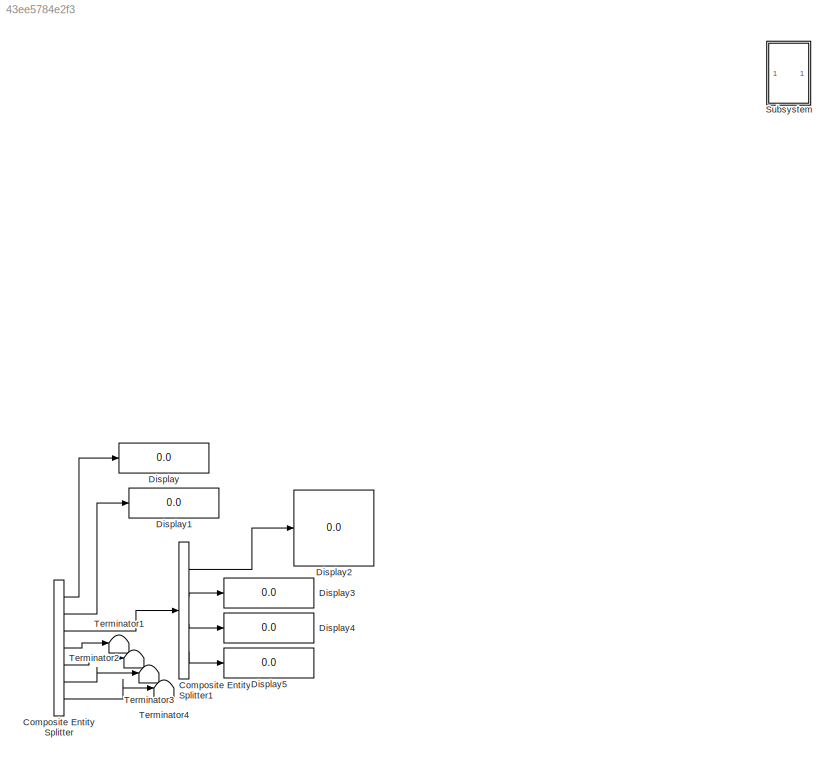
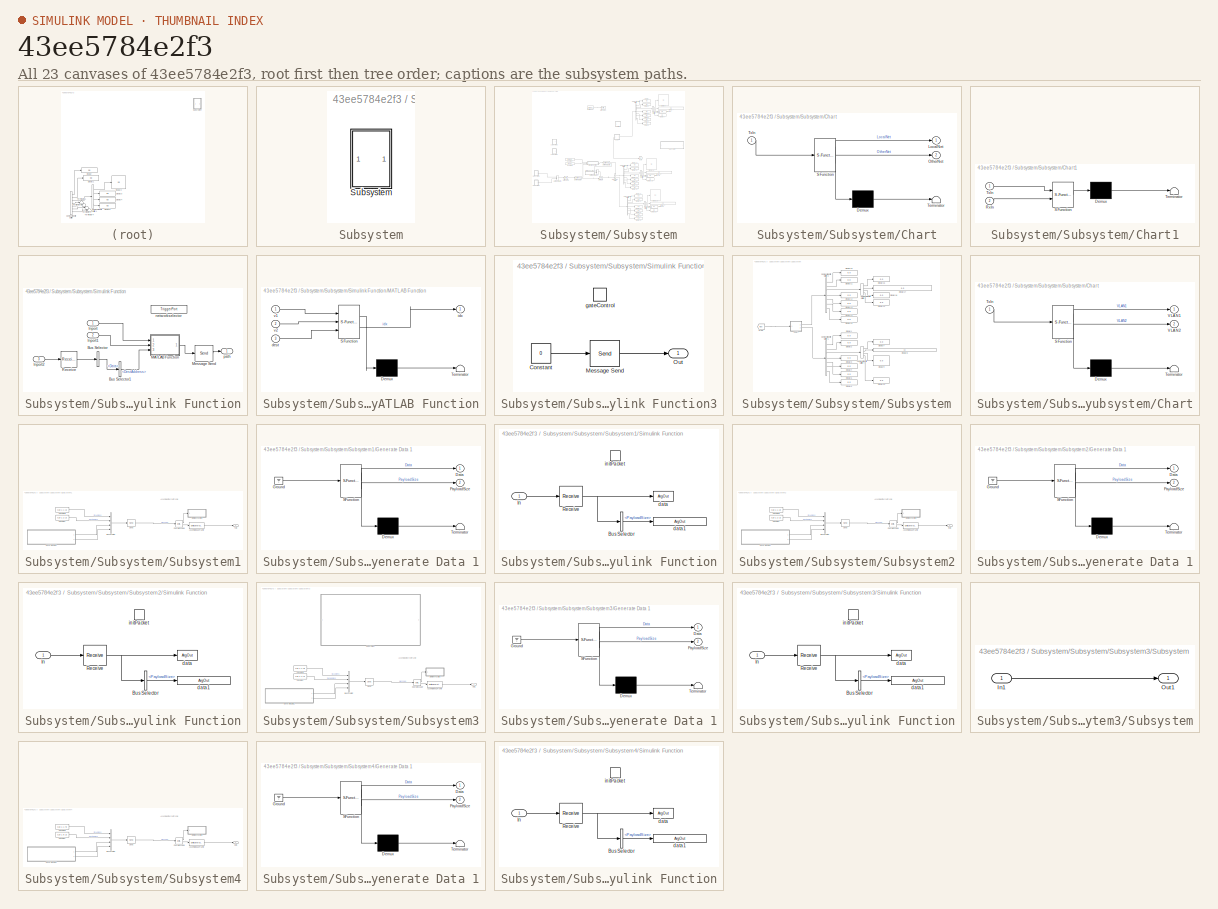
[diagram: thumbnail index - all 23 canvases of the model, root first then tree order]
MODEL slx_43ee5784e2f3
KIND model
CONFIG AbsTol = auto
CONFIG EnableMultiTasking = off
CONFIG FixedStep = auto
CONFIG MaxStep = auto
CONFIG MinStep = auto
CONFIG RelTol = 1e-3
CONFIG SampleTimeConstraint = Unconstrained
CONFIG SolverName = VariableStepAuto
CONFIG StartTime = 0.0
CONFIG StopTime = 30
BLOCK [CompositeEntitySplitter] Composite Entity Splitter
  Commented = on
  InputPortMap = u0
  InputPortMessageModes = m
  NumberOutputPorts = 7
  OutputPortMap = o0,o1,o2,o3,o4,o5,o6
  OutputPortMessageModes = m,m,m,m,m,m,m
  Ports = [1, 7]
BLOCK [CompositeEntitySplitter] Composite Entity Splitter1
  Commented = on
  InputPortMap = u0
  InputPortMessageModes = m
  NumberOutputPorts = 4
  OutputPortMap = o0,o1,o2,o3
  OutputPortMessageModes = m,m,m,m
  Ports = [1, 4]
BLOCK [Display] Display
  Commented = on
  Decimation = 1
  Ports = [1]
BLOCK [Display] Display1
  Commented = on
  Decimation = 1
  Ports = [1]
BLOCK [Display] Display2
  Commented = on
  Decimation = 1
  Ports = [1]
BLOCK [Display] Display3
  Commented = on
  Decimation = 1
  Ports = [1]
BLOCK [Display] Display4
  Commented = on
  Decimation = 1
  Ports = [1]
BLOCK [Display] Display5
  Commented = on
  Decimation = 1
  Ports = [1]
BLOCK [SubSystem] Subsystem
  Ports = []
  RequestExecContextInheritance = off
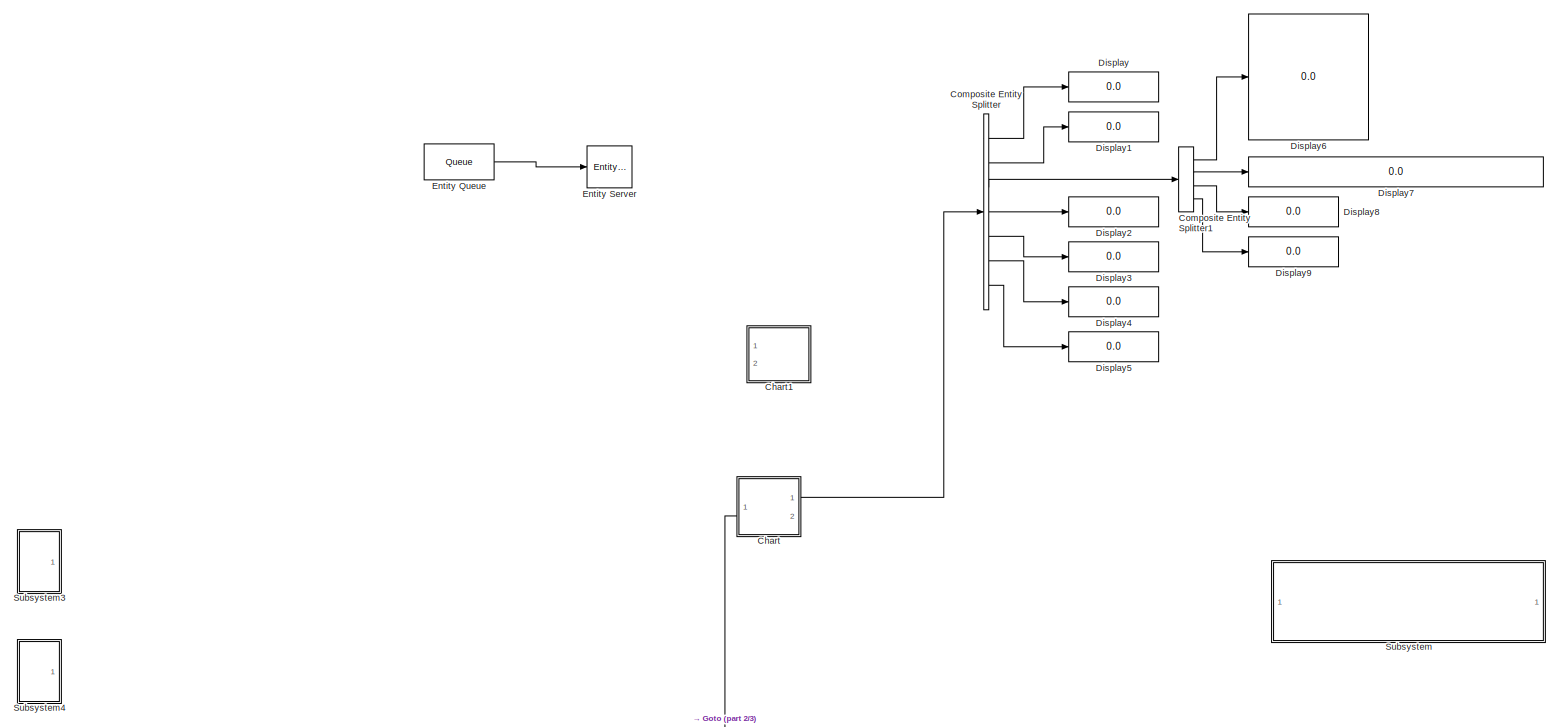
[diagram: Subsystem/Subsystem - part 1/3, full width, top band]
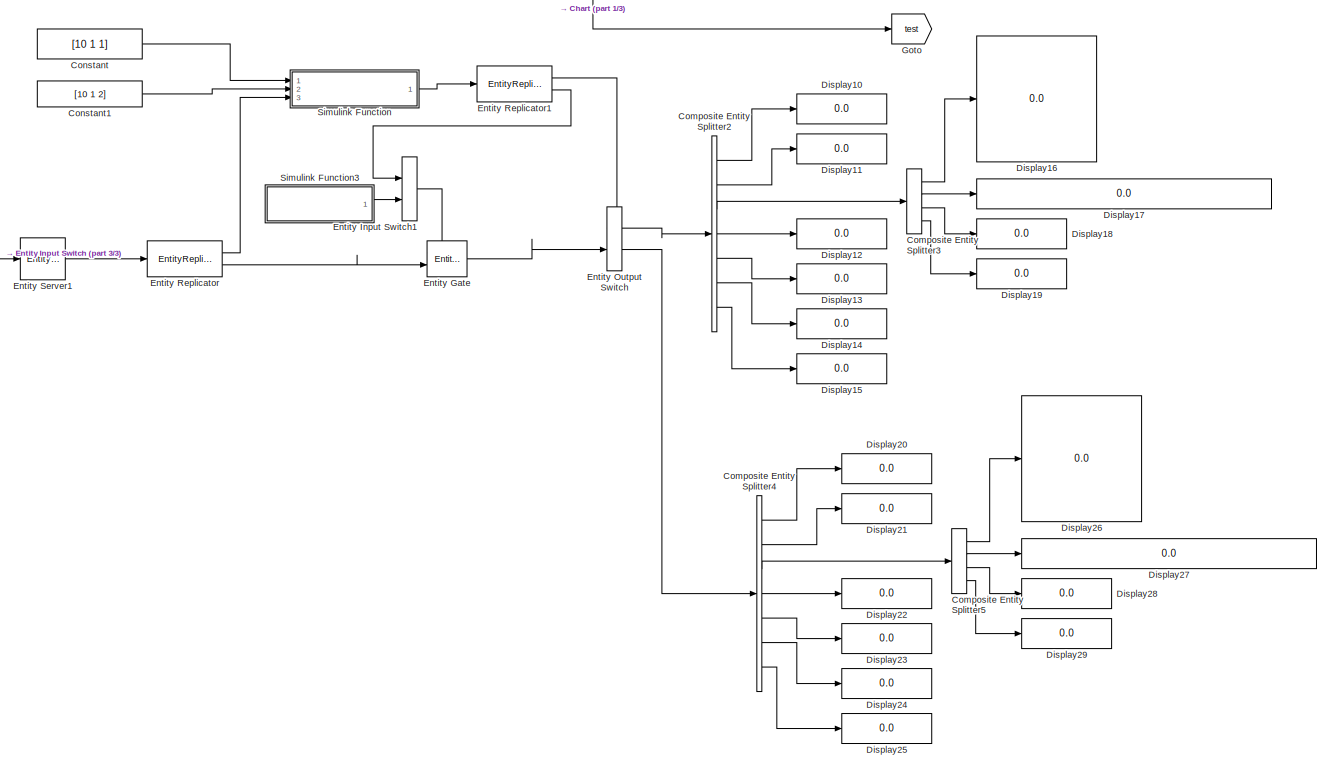
[diagram: Subsystem/Subsystem - part 2/3, full width, bottom band]
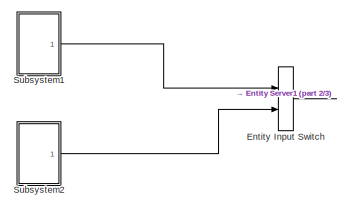
[diagram: Subsystem/Subsystem - part 3/3, middle left region]
BLOCK [SubSystem] Subsystem/Subsystem
  Ports = []
  RequestExecContextInheritance = off
BLOCK [SubSystem] Subsystem/Subsystem/Chart
  Commented = on
  ErrorFcn = Stateflow.Translate.translate
  PermitHierarchicalResolution = ExplicitOnly
  Ports = [1, 2]
  RequestExecContextInheritance = off
  SFBlockType = Chart
  TreatAsAtomicUnit = on
BLOCK [Demux] Subsystem/Subsystem/Chart/ Demux 
  Outputs = 1
  Ports = [1, 1]
BLOCK [S-Function] Subsystem/Subsystem/Chart/ SFunction 
  EnableBusSupport = on
  FunctionName = sf_sfun
  InputPortMessageModes = m
  OutputPortMessageModes = n,m,m
  Parameters = ip
  PortCounts = [1 3]
  Ports = [1, 3]
  SFcnIsStateOwnerBlock = off
  SFunctionDeploymentMode = off
  Tag = Stateflow S-Function 3
BLOCK [Terminator] Subsystem/Subsystem/Chart/ Terminator 
BLOCK [Outport] Subsystem/Subsystem/Chart/LocalNet
BLOCK [Outport] Subsystem/Subsystem/Chart/OtherNet
  Port = 2
BLOCK [Inport] Subsystem/Subsystem/Chart/TxIn
BLOCK [SubSystem] Subsystem/Subsystem/Chart1
  Commented = on
  ErrorFcn = Stateflow.Translate.translate
  PermitHierarchicalResolution = ExplicitOnly
  Ports = [2]
  RequestExecContextInheritance = off
  SFBlockType = Chart
  TreatAsAtomicUnit = on
BLOCK [Demux] Subsystem/Subsystem/Chart1/ Demux 
  Outputs = 1
  Ports = [1, 1]
BLOCK [S-Function] Subsystem/Subsystem/Chart1/ SFunction 
  EnableBusSupport = on
  FunctionName = sf_sfun
  InputPortMessageModes = m,m
  PortCounts = [2 1]
  Ports = [2, 1]
  SFcnIsStateOwnerBlock = off
  SFunctionDeploymentMode = off
  Tag = Stateflow S-Function 7
BLOCK [Terminator] Subsystem/Subsystem/Chart1/ Terminator 
BLOCK [Inport] Subsystem/Subsystem/Chart1/RxIn
  Port = 2
BLOCK [Inport] Subsystem/Subsystem/Chart1/TxIn
BLOCK [CompositeEntitySplitter] Subsystem/Subsystem/Composite Entity Splitter
  Commented = on
  InputPortMap = u0
  InputPortMessageModes = m
  NumberOutputPorts = 7
  OutputPortMap = o0,o1,o2,o3,o4,o5,o6
  OutputPortMessageModes = m,m,m,m,m,m,m
  Ports = [1, 7]
BLOCK [CompositeEntitySplitter] Subsystem/Subsystem/Composite Entity Splitter1
  Commented = on
  InputPortMap = u0
  InputPortMessageModes = m
  NumberOutputPorts = 4
  OutputPortMap = o0,o1,o2,o3
  OutputPortMessageModes = m,m,m,m
  Ports = [1, 4]
BLOCK [CompositeEntitySplitter] Subsystem/Subsystem/Composite Entity Splitter2
  InputPortMap = u0
  InputPortMessageModes = m
  NumberOutputPorts = 7
  OutputPortMap = o0,o1,o2,o3,o4,o5,o6
  OutputPortMessageModes = m,m,m,m,m,m,m
  Ports = [1, 7]
BLOCK [CompositeEntitySplitter] Subsystem/Subsystem/Composite Entity Splitter3
  InputPortMap = u0
  InputPortMessageModes = m
  NumberOutputPorts = 4
  OutputPortMap = o0,o1,o2,o3
  OutputPortMessageModes = m,m,m,m
  Ports = [1, 4]
BLOCK [CompositeEntitySplitter] Subsystem/Subsystem/Composite Entity Splitter4
  InputPortMap = u0
  InputPortMessageModes = m
  NumberOutputPorts = 7
  OutputPortMap = o0,o1,o2,o3,o4,o5,o6
  OutputPortMessageModes = m,m,m,m,m,m,m
  Ports = [1, 7]
BLOCK [CompositeEntitySplitter] Subsystem/Subsystem/Composite Entity Splitter5
  InputPortMap = u0
  InputPortMessageModes = m
  NumberOutputPorts = 4
  OutputPortMap = o0,o1,o2,o3
  OutputPortMessageModes = m,m,m,m
  Ports = [1, 4]
BLOCK [Constant] Subsystem/Subsystem/Constant
  Value = [10 1 1]
BLOCK [Constant] Subsystem/Subsystem/Constant1
  Value = [10 1 2]
BLOCK [Display] Subsystem/Subsystem/Display
  Commented = on
  Decimation = 1
  Ports = [1]
BLOCK [Display] Subsystem/Subsystem/Display1
  Commented = on
  Decimation = 1
  Ports = [1]
BLOCK [Display] Subsystem/Subsystem/Display10
  Decimation = 1
  Ports = [1]
BLOCK [Display] Subsystem/Subsystem/Display11
  Decimation = 1
  Ports = [1]
BLOCK [Display] Subsystem/Subsystem/Display12
  Decimation = 1
  Ports = [1]
BLOCK [Display] Subsystem/Subsystem/Display13
  Decimation = 1
  Ports = [1]
BLOCK [Display] Subsystem/Subsystem/Display14
  Decimation = 1
  Ports = [1]
BLOCK [Display] Subsystem/Subsystem/Display15
  Decimation = 1
  Ports = [1]
BLOCK [Display] Subsystem/Subsystem/Display16
  Decimation = 1
  Ports = [1]
BLOCK [Display] Subsystem/Subsystem/Display17
  Decimation = 1
  Ports = [1]
BLOCK [Display] Subsystem/Subsystem/Display18
  Decimation = 1
  Ports = [1]
BLOCK [Display] Subsystem/Subsystem/Display19
  Decimation = 1
  Ports = [1]
BLOCK [Display] Subsystem/Subsystem/Display2
  Commented = on
  Decimation = 1
  Ports = [1]
BLOCK [Display] Subsystem/Subsystem/Display20
  Decimation = 1
  Ports = [1]
BLOCK [Display] Subsystem/Subsystem/Display21
  Decimation = 1
  Ports = [1]
BLOCK [Display] Subsystem/Subsystem/Display22
  Decimation = 1
  Ports = [1]
BLOCK [Display] Subsystem/Subsystem/Display23
  Decimation = 1
  Ports = [1]
BLOCK [Display] Subsystem/Subsystem/Display24
  Decimation = 1
  Ports = [1]
BLOCK [Display] Subsystem/Subsystem/Display25
  Decimation = 1
  Ports = [1]
BLOCK [Display] Subsystem/Subsystem/Display26
  Decimation = 1
  Ports = [1]
BLOCK [Display] Subsystem/Subsystem/Display27
  Decimation = 1
  Ports = [1]
BLOCK [Display] Subsystem/Subsystem/Display28
  Decimation = 1
  Ports = [1]
BLOCK [Display] Subsystem/Subsystem/Display29
  Decimation = 1
  Ports = [1]
BLOCK [Display] Subsystem/Subsystem/Display3
  Commented = on
  Decimation = 1
  Ports = [1]
BLOCK [Display] Subsystem/Subsystem/Display4
  Commented = on
  Decimation = 1
  Ports = [1]
BLOCK [Display] Subsystem/Subsystem/Display5
  Commented = on
  Decimation = 1
  Ports = [1]
BLOCK [Display] Subsystem/Subsystem/Display6
  Commented = on
  Decimation = 1
  Ports = [1]
BLOCK [Display] Subsystem/Subsystem/Display7
  Commented = on
  Decimation = 1
  Ports = [1]
BLOCK [Display] Subsystem/Subsystem/Display8
  Commented = on
  Decimation = 1
  Ports = [1]
BLOCK [Display] Subsystem/Subsystem/Display9
  Commented = on
  Decimation = 1
  Ports = [1]
BLOCK [EntityGate] Subsystem/Subsystem/Entity Gate
  InputPortMap = u0,u1
  InputPortMessageModes = m,m
  OpenGateAtSimulationStart = on
  OutputPortMap = o0
  OutputPortMessageModes = m
  Ports = [2, 1]
BLOCK [EntityInputSwitch] Subsystem/Subsystem/Entity Input Switch
  InputPortMap = u1,u2
  InputPortMessageModes = m,m
  OutputPortMap = o0
  OutputPortMessageModes = m
  Ports = [2, 1]
BLOCK [EntityInputSwitch] Subsystem/Subsystem/Entity Input Switch1
  InputPortMap = u1,u2
  InputPortMessageModes = m,m
  OutputPortMap = o0
  OutputPortMessageModes = m
  Ports = [2, 1]
BLOCK [EntityOutputSwitch] Subsystem/Subsystem/Entity Output Switch
  InputPortMap = u0,u1
  InputPortMessageModes = m,m
  OutputPortMap = o0,o1
  OutputPortMessageModes = m,m
  Ports = [2, 2]
  SwitchAttributeName = Attribute1
  SwitchingCriterion = From control port
BLOCK [Queue] Subsystem/Subsystem/Entity Queue
  Capacity = 255
  Commented = on
  InputPortMap = u0
  InputPortMessageModes = m
  OutputPortMap = o5
  OutputPortMessageModes = m
  Ports = [1, 1]
BLOCK [EntityReplicator] Subsystem/Subsystem/Entity Replicator
  InputPortMap = u0
  InputPortMessageModes = m
  OutputPortMap = o0,o1
  OutputPortMessageModes = m,m
  Ports = [1, 2]
BLOCK [EntityReplicator] Subsystem/Subsystem/Entity Replicator1
  InputPortMap = u0
  InputPortMessageModes = m
  OutputPortMap = o0,o1
  OutputPortMessageModes = m,m
  Ports = [1, 2]
BLOCK [EntityServer] Subsystem/Subsystem/Entity Server
  Capacity = 255
  Commented = on
  InputPortMap = u2
  InputPortMessageModes = m
  OutputPortMap = o9
  OutputPortMessageModes = m
  Ports = [1, 1]
  ServiceTimeValue = 0.01
BLOCK [EntityServer] Subsystem/Subsystem/Entity Server1
  Capacity = inf
  ExitAction = gateControl();
  InputPortMap = u2
  InputPortMessageModes = m
  OutputPortMap = o9
  OutputPortMessageModes = m
  Ports = [1, 1]
  ServiceCompleteAction = networkselector();
  ServiceTimeSource = MATLAB action
BLOCK [Goto] Subsystem/Subsystem/Goto
  Commented = on
  GotoTag = test
  TagVisibility = global
BLOCK [SubSystem] Subsystem/Subsystem/Simulink Function
  Ports = [3, 1, 0, 1]
  RequestExecContextInheritance = off
  TreatAsAtomicUnit = on
BLOCK [BusSelector] Subsystem/Subsystem/Simulink Function/Bus Selector
  OutputSignals = Data
  Ports = [1, 1]
BLOCK [BusSelector] Subsystem/Subsystem/Simulink Function/Bus Selector1
  OutputSignals = DestAddress
  Ports = [1, 1]
BLOCK [Inport] Subsystem/Subsystem/Simulink Function/Inport
BLOCK [Inport] Subsystem/Subsystem/Simulink Function/Inport1
  Port = 2
BLOCK [Inport] Subsystem/Subsystem/Simulink Function/Inport2
  Port = 3
BLOCK [SubSystem] Subsystem/Subsystem/Simulink Function/MATLAB Function
  ErrorFcn = Stateflow.Translate.translate
  PermitHierarchicalResolution = ExplicitOnly
  Ports = [3, 1]
  RequestExecContextInheritance = off
  SFBlockType = MATLAB Function
  TreatAsAtomicUnit = on
BLOCK [Demux] Subsystem/Subsystem/Simulink Function/MATLAB Function/ Demux 
  Outputs = 1
  Ports = [1, 1]
BLOCK [S-Function] Subsystem/Subsystem/Simulink Function/MATLAB Function/ SFunction 
  EnableBusSupport = on
  FunctionName = sf_sfun
  PortCounts = [3 2]
  Ports = [3, 2]
  SFcnIsStateOwnerBlock = off
  SFunctionDeploymentMode = off
  Tag = Stateflow S-Function 8
BLOCK [Terminator] Subsystem/Subsystem/Simulink Function/MATLAB Function/ Terminator 
BLOCK [Inport] Subsystem/Subsystem/Simulink Function/MATLAB Function/dest
  Port = 3
BLOCK [Outport] Subsystem/Subsystem/Simulink Function/MATLAB Function/idx
BLOCK [Inport] Subsystem/Subsystem/Simulink Function/MATLAB Function/v1
BLOCK [Inport] Subsystem/Subsystem/Simulink Function/MATLAB Function/v2
  Port = 2
BLOCK [Send] Subsystem/Subsystem/Simulink Function/Message Send
  InputPortMap = u1
  OutputPortMessageModes = m
  Ports = [1, 1]
BLOCK [Receive] Subsystem/Subsystem/Simulink Function/Receive
  InputPortMap = u0
  InputPortMessageModes = m
  OutputPortMap = o1
  Ports = [1, 1]
  QueueLength = 1
  QueueOverwriting = on
  QueueType = LIFO
  UseInternalQueue = off
BLOCK [TriggerPort] Subsystem/Subsystem/Simulink Function/networkselector
  FunctionName = networkselector
  FunctionVisibility = scoped
  IsSimulinkFunction = on
  Ports = []
  StatesWhenEnabling = held
  TriggerType = function-call
  VariantControl = (inherit)
BLOCK [Outport] Subsystem/Subsystem/Simulink Function/path
BLOCK [SubSystem] Subsystem/Subsystem/Simulink Function3
  Ports = [0, 1, 0, 1]
  RequestExecContextInheritance = off
  TreatAsAtomicUnit = on
BLOCK [Constant] Subsystem/Subsystem/Simulink Function3/Constant
  Value = 0
BLOCK [Send] Subsystem/Subsystem/Simulink Function3/Message Send
  InputPortMap = u1
  OutputPortMessageModes = m
  Ports = [1, 1]
BLOCK [Outport] Subsystem/Subsystem/Simulink Function3/Out
BLOCK [TriggerPort] Subsystem/Subsystem/Simulink Function3/gateControl
  FunctionName = gateControl
  FunctionVisibility = scoped
  IsSimulinkFunction = on
  Ports = []
  StatesWhenEnabling = held
  TriggerType = function-call
  VariantControl = Variant
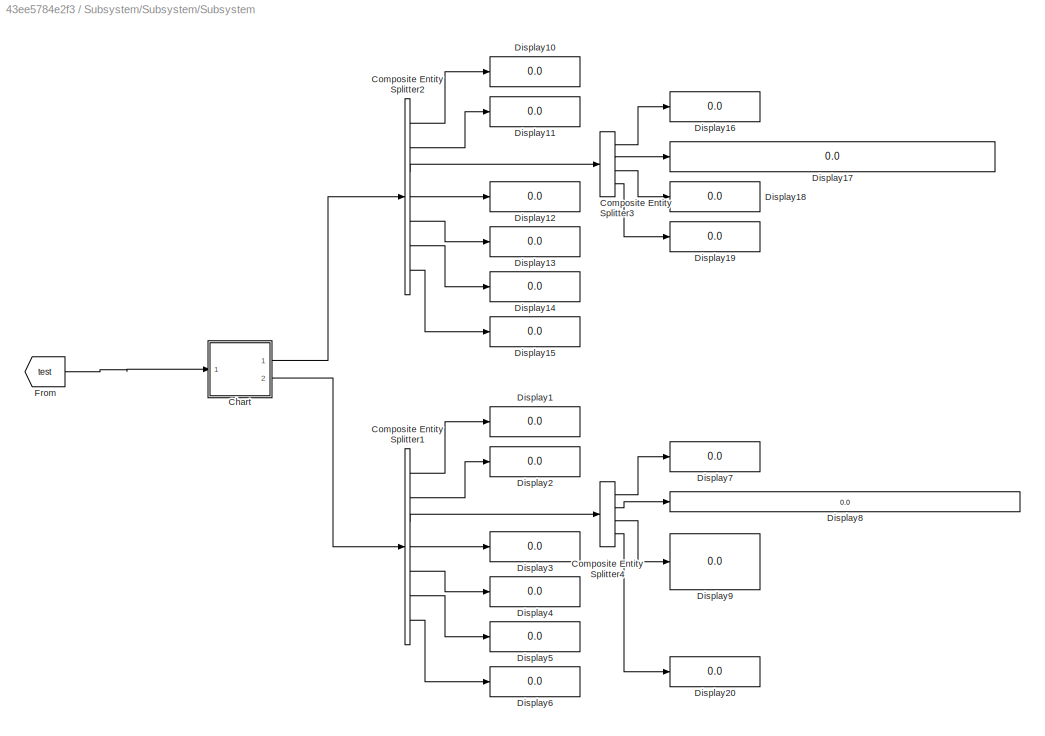
BLOCK [SubSystem] Subsystem/Subsystem/Subsystem
  Commented = on
  Ports = []
  RequestExecContextInheritance = off
BLOCK [SubSystem] Subsystem/Subsystem/Subsystem/Chart
  ErrorFcn = Stateflow.Translate.translate
  PermitHierarchicalResolution = ExplicitOnly
  Ports = [1, 2]
  RequestExecContextInheritance = off
  SFBlockType = Chart
  TreatAsAtomicUnit = on
BLOCK [Demux] Subsystem/Subsystem/Subsystem/Chart/ Demux 
  Outputs = 1
  Ports = [1, 1]
BLOCK [S-Function] Subsystem/Subsystem/Subsystem/Chart/ SFunction 
  EnableBusSupport = on
  FunctionName = sf_sfun
  InputPortMessageModes = m
  OutputPortMessageModes = n,m,m
  Parameters = vlan1,vlan2
  PortCounts = [1 3]
  Ports = [1, 3]
  SFcnIsStateOwnerBlock = off
  SFunctionDeploymentMode = off
  Tag = Stateflow S-Function 2
BLOCK [Terminator] Subsystem/Subsystem/Subsystem/Chart/ Terminator 
BLOCK [Inport] Subsystem/Subsystem/Subsystem/Chart/TxIn
BLOCK [Outport] Subsystem/Subsystem/Subsystem/Chart/VLAN1
BLOCK [Outport] Subsystem/Subsystem/Subsystem/Chart/VLAN2
  Port = 2
BLOCK [CompositeEntitySplitter] Subsystem/Subsystem/Subsystem/Composite Entity Splitter1
  InputPortMap = u0
  InputPortMessageModes = m
  NumberOutputPorts = 7
  OutputPortMap = o0,o1,o2,o3,o4,o5,o6
  OutputPortMessageModes = m,m,m,m,m,m,m
  Ports = [1, 7]
BLOCK [CompositeEntitySplitter] Subsystem/Subsystem/Subsystem/Composite Entity Splitter2
  InputPortMap = u0
  InputPortMessageModes = m
  NumberOutputPorts = 7
  OutputPortMap = o0,o1,o2,o3,o4,o5,o6
  OutputPortMessageModes = m,m,m,m,m,m,m
  Ports = [1, 7]
BLOCK [CompositeEntitySplitter] Subsystem/Subsystem/Subsystem/Composite Entity Splitter3
  InputPortMap = u0
  InputPortMessageModes = m
  NumberOutputPorts = 4
  OutputPortMap = o0,o1,o2,o3
  OutputPortMessageModes = m,m,m,m
  Ports = [1, 4]
BLOCK [CompositeEntitySplitter] Subsystem/Subsystem/Subsystem/Composite Entity Splitter4
  InputPortMap = u0
  InputPortMessageModes = m
  NumberOutputPorts = 4
  OutputPortMap = o0,o1,o2,o3
  OutputPortMessageModes = m,m,m,m
  Ports = [1, 4]
BLOCK [Display] Subsystem/Subsystem/Subsystem/Display1
  Decimation = 1
  Ports = [1]
BLOCK [Display] Subsystem/Subsystem/Subsystem/Display10
  Decimation = 1
  Ports = [1]
BLOCK [Display] Subsystem/Subsystem/Subsystem/Display11
  Decimation = 1
  Ports = [1]
BLOCK [Display] Subsystem/Subsystem/Subsystem/Display12
  Decimation = 1
  Ports = [1]
BLOCK [Display] Subsystem/Subsystem/Subsystem/Display13
  Decimation = 1
  Ports = [1]
BLOCK [Display] Subsystem/Subsystem/Subsystem/Display14
  Decimation = 1
  Ports = [1]
BLOCK [Display] Subsystem/Subsystem/Subsystem/Display15
  Decimation = 1
  Ports = [1]
BLOCK [Display] Subsystem/Subsystem/Subsystem/Display16
  Decimation = 1
  Ports = [1]
BLOCK [Display] Subsystem/Subsystem/Subsystem/Display17
  Decimation = 1
  Ports = [1]
BLOCK [Display] Subsystem/Subsystem/Subsystem/Display18
  Decimation = 1
  Ports = [1]
BLOCK [Display] Subsystem/Subsystem/Subsystem/Display19
  Decimation = 1
  Ports = [1]
BLOCK [Display] Subsystem/Subsystem/Subsystem/Display2
  Decimation = 1
  Ports = [1]
BLOCK [Display] Subsystem/Subsystem/Subsystem/Display20
  Decimation = 1
  Ports = [1]
BLOCK [Display] Subsystem/Subsystem/Subsystem/Display3
  Decimation = 1
  Ports = [1]
BLOCK [Display] Subsystem/Subsystem/Subsystem/Display4
  Decimation = 1
  Ports = [1]
BLOCK [Display] Subsystem/Subsystem/Subsystem/Display5
  Decimation = 1
  Ports = [1]
BLOCK [Display] Subsystem/Subsystem/Subsystem/Display6
  Decimation = 1
  Ports = [1]
BLOCK [Display] Subsystem/Subsystem/Subsystem/Display7
  Decimation = 1
  Ports = [1]
BLOCK [Display] Subsystem/Subsystem/Subsystem/Display8
  Decimation = 1
  Ports = [1]
BLOCK [Display] Subsystem/Subsystem/Subsystem/Display9
  Decimation = 1
  Ports = [1]
BLOCK [From] Subsystem/Subsystem/Subsystem/From
  GotoTag = test
  TagVisibility = global
BLOCK [SubSystem] Subsystem/Subsystem/Subsystem1
  Ports = [0, 1]
  RequestExecContextInheritance = off
BLOCK [EntityGenerator] Subsystem/Subsystem/Subsystem1/Assemble MAC Frame
  EntityType = Bus object
  EntityTypeName = ethernetPacket
  GenerateAction = entity.TxAddress = 1;\nentity.RxAddress = 0;\n[entity.Data, entity.PayloadSize] = initPacket();\nentity.TxDelay = (entity.PayloadSize+22)*8/BitRate;\nentity.BackoffTime = 0;\nentity.CRC = 0;  <repeated x4 — deduplicated; at blocks: Assemble MAC Frame>
  GenerationMethod = Event-based
  InputPortMap = u0
  InputPortMessageModes = m
  OutputPortMap = o3
  OutputPortMessageModes = m
  Ports = [1, 1]
BLOCK [BusCreator] Subsystem/Subsystem/Subsystem1/Bus Creator
  DisplayOption = bar
  InheritFromInputs = on
  Inputs = 4
  NonVirtualBus = on
  OutDataTypeStr = Bus: dataPacket
  Ports = [4, 1]
BLOCK [Constant] Subsystem/Subsystem/Subsystem1/Constant
  Value = [10 1 2 1]
BLOCK [Constant] Subsystem/Subsystem/Subsystem1/Constant1
  Value = [10 1 1 1]
BLOCK [EntityReplicator] Subsystem/Subsystem/Subsystem1/Copy Message
  InputPortMap = u0
  InputPortMessageModes = m
  OutputPortMap = o0,o1
  OutputPortMessageModes = m,m
  Ports = [1, 2]
BLOCK [SubSystem] Subsystem/Subsystem/Subsystem1/Generate Data 1
  ErrorFcn = Stateflow.Translate.translate
  PermitHierarchicalResolution = ExplicitOnly
  Ports = [0, 2]
  RequestExecContextInheritance = off
  SFBlockType = MATLAB Function
  SystemSampleTime = 0.01
  TreatAsAtomicUnit = on
BLOCK [Demux] Subsystem/Subsystem/Subsystem1/Generate Data 1/ Demux 
  Outputs = 1
  Ports = [1, 1]
BLOCK [Ground] Subsystem/Subsystem/Subsystem1/Generate Data 1/ Ground 
BLOCK [S-Function] Subsystem/Subsystem/Subsystem1/Generate Data 1/ SFunction 
  EnableBusSupport = on
  FunctionName = sf_sfun
  PortCounts = [1 3]
  Ports = [1, 3]
  SFcnIsStateOwnerBlock = off
  SFunctionDeploymentMode = off
  Tag = Stateflow S-Function 1
BLOCK [Terminator] Subsystem/Subsystem/Subsystem1/Generate Data 1/ Terminator 
BLOCK [Outport] Subsystem/Subsystem/Subsystem1/Generate Data 1/Data
BLOCK [Outport] Subsystem/Subsystem/Subsystem1/Generate Data 1/PayloadSize
  Port = 2
BLOCK [Send] Subsystem/Subsystem/Subsystem1/Send
  InputPortMap = u1
  OutputPortMessageModes = m
  Ports = [1, 1]
BLOCK [SubSystem] Subsystem/Subsystem/Subsystem1/Simulink Function
  Ports = [1, 0, 0, 1]
  RequestExecContextInheritance = off
  TreatAsAtomicUnit = on
BLOCK [BusSelector] Subsystem/Subsystem/Subsystem1/Simulink Function/Bus Selector
  OutputSignals = PayloadSize
  Ports = [1, 1]
BLOCK [Inport] Subsystem/Subsystem/Subsystem1/Simulink Function/In
BLOCK [Receive] Subsystem/Subsystem/Subsystem1/Simulink Function/Receive
  InputPortMap = u0
  InputPortMessageModes = m
  OutputPortMap = o1
  Ports = [1, 1]
  QueueLength = 2^16-1
BLOCK [ArgOut] Subsystem/Subsystem/Subsystem1/Simulink Function/data
  ArgumentName = data
  DisableCoverage = on
  OutDataTypeStr = Bus: dataPacket
BLOCK [ArgOut] Subsystem/Subsystem/Subsystem1/Simulink Function/data1
  ArgumentName = payloadsize
  DisableCoverage = on
  Port = 2
BLOCK [TriggerPort] Subsystem/Subsystem/Subsystem1/Simulink Function/initPacket
  FunctionName = initPacket
  FunctionVisibility = scoped
  IsSimulinkFunction = on
  Ports = []
  StatesWhenEnabling = held
  TriggerType = function-call
  VariantControl = (inherit)
BLOCK [Outport] Subsystem/Subsystem/Subsystem1/TxIn
BLOCK [SubSystem] Subsystem/Subsystem/Subsystem2
  Ports = [0, 1]
  RequestExecContextInheritance = off
BLOCK [EntityGenerator] Subsystem/Subsystem/Subsystem2/Assemble MAC Frame
  EntityType = Bus object
  EntityTypeName = ethernetPacket
  GenerationMethod = Event-based
  InputPortMap = u0
  InputPortMessageModes = m
  OutputPortMap = o3
  OutputPortMessageModes = m
  Ports = [1, 1]
BLOCK [BusCreator] Subsystem/Subsystem/Subsystem2/Bus Creator
  DisplayOption = bar
  InheritFromInputs = on
  Inputs = 4
  NonVirtualBus = on
  OutDataTypeStr = Bus: dataPacket
  Ports = [4, 1]
BLOCK [Constant] Subsystem/Subsystem/Subsystem2/Constant
  Value = [10 1 2 1]
BLOCK [Constant] Subsystem/Subsystem/Subsystem2/Constant1
  Value = [10 1 1 2]
BLOCK [EntityReplicator] Subsystem/Subsystem/Subsystem2/Copy Message
  InputPortMap = u0
  InputPortMessageModes = m
  OutputPortMap = o0,o1
  OutputPortMessageModes = m,m
  Ports = [1, 2]
BLOCK [SubSystem] Subsystem/Subsystem/Subsystem2/Generate Data 1
  ErrorFcn = Stateflow.Translate.translate
  PermitHierarchicalResolution = ExplicitOnly
  Ports = [0, 2]
  RequestExecContextInheritance = off
  SFBlockType = MATLAB Function
  SystemSampleTime = 0.01
  TreatAsAtomicUnit = on
BLOCK [Demux] Subsystem/Subsystem/Subsystem2/Generate Data 1/ Demux 
  Outputs = 1
  Ports = [1, 1]
BLOCK [Ground] Subsystem/Subsystem/Subsystem2/Generate Data 1/ Ground 
BLOCK [S-Function] Subsystem/Subsystem/Subsystem2/Generate Data 1/ SFunction 
  EnableBusSupport = on
  FunctionName = sf_sfun
  PortCounts = [1 3]
  Ports = [1, 3]
  SFcnIsStateOwnerBlock = off
  SFunctionDeploymentMode = off
  Tag = Stateflow S-Function 4
BLOCK [Terminator] Subsystem/Subsystem/Subsystem2/Generate Data 1/ Terminator 
BLOCK [Outport] Subsystem/Subsystem/Subsystem2/Generate Data 1/Data
BLOCK [Outport] Subsystem/Subsystem/Subsystem2/Generate Data 1/PayloadSize
  Port = 2
BLOCK [Outport] Subsystem/Subsystem/Subsystem2/RxIn
BLOCK [Send] Subsystem/Subsystem/Subsystem2/Send
  InputPortMap = u1
  OutputPortMessageModes = m
  Ports = [1, 1]
BLOCK [SubSystem] Subsystem/Subsystem/Subsystem2/Simulink Function
  Ports = [1, 0, 0, 1]
  RequestExecContextInheritance = off
  TreatAsAtomicUnit = on
BLOCK [BusSelector] Subsystem/Subsystem/Subsystem2/Simulink Function/Bus Selector
  OutputSignals = PayloadSize
  Ports = [1, 1]
BLOCK [Inport] Subsystem/Subsystem/Subsystem2/Simulink Function/In
BLOCK [Receive] Subsystem/Subsystem/Subsystem2/Simulink Function/Receive
  InputPortMap = u0
  InputPortMessageModes = m
  OutputPortMap = o1
  Ports = [1, 1]
  QueueLength = 2^16-1
BLOCK [ArgOut] Subsystem/Subsystem/Subsystem2/Simulink Function/data
  ArgumentName = data
  DisableCoverage = on
  OutDataTypeStr = Bus: dataPacket
BLOCK [ArgOut] Subsystem/Subsystem/Subsystem2/Simulink Function/data1
  ArgumentName = payloadsize
  DisableCoverage = on
  Port = 2
BLOCK [TriggerPort] Subsystem/Subsystem/Subsystem2/Simulink Function/initPacket
  FunctionName = initPacket
  FunctionVisibility = scoped
  IsSimulinkFunction = on
  Ports = []
  StatesWhenEnabling = held
  TriggerType = function-call
  VariantControl = (inherit)
BLOCK [SubSystem] Subsystem/Subsystem/Subsystem3
  Commented = on
  Ports = [0, 1]
  RequestExecContextInheritance = off
BLOCK [EntityGenerator] Subsystem/Subsystem/Subsystem3/Assemble MAC Frame
  EntityType = Bus object
  EntityTypeName = ethernetPacket
  GenerationMethod = Event-based
  InputPortMap = u0
  InputPortMessageModes = m
  OutputPortMap = o3
  OutputPortMessageModes = m
  Ports = [1, 1]
BLOCK [BusCreator] Subsystem/Subsystem/Subsystem3/Bus Creator
  DisplayOption = bar
  InheritFromInputs = on
  Inputs = 4
  NonVirtualBus = on
  OutDataTypeStr = Bus: dataPacket
  Ports = [4, 1]
BLOCK [Constant] Subsystem/Subsystem/Subsystem3/Constant
  Value = [10 1 4 1]
BLOCK [Constant] Subsystem/Subsystem/Subsystem3/Constant1
  Value = [10 1 1 3]
BLOCK [EntityReplicator] Subsystem/Subsystem/Subsystem3/Copy Message
  InputPortMap = u0
  InputPortMessageModes = m
  OutputPortMap = o0,o1
  OutputPortMessageModes = m,m
  Ports = [1, 2]
BLOCK [SubSystem] Subsystem/Subsystem/Subsystem3/Generate Data 1
  ErrorFcn = Stateflow.Translate.translate
  PermitHierarchicalResolution = ExplicitOnly
  Ports = [0, 2]
  RequestExecContextInheritance = off
  SFBlockType = MATLAB Function
  SystemSampleTime = 0.2
  TreatAsAtomicUnit = on
BLOCK [Demux] Subsystem/Subsystem/Subsystem3/Generate Data 1/ Demux 
  Outputs = 1
  Ports = [1, 1]
BLOCK [Ground] Subsystem/Subsystem/Subsystem3/Generate Data 1/ Ground 
BLOCK [S-Function] Subsystem/Subsystem/Subsystem3/Generate Data 1/ SFunction 
  EnableBusSupport = on
  FunctionName = sf_sfun
  PortCounts = [1 3]
  Ports = [1, 3]
  SFcnIsStateOwnerBlock = off
  SFunctionDeploymentMode = off
  Tag = Stateflow S-Function 5
BLOCK [Terminator] Subsystem/Subsystem/Subsystem3/Generate Data 1/ Terminator 
BLOCK [Outport] Subsystem/Subsystem/Subsystem3/Generate Data 1/Data
BLOCK [Outport] Subsystem/Subsystem/Subsystem3/Generate Data 1/PayloadSize
  Port = 2
BLOCK [Outport] Subsystem/Subsystem/Subsystem3/Out1
BLOCK [Send] Subsystem/Subsystem/Subsystem3/Send
  InputPortMap = u1
  OutputPortMessageModes = m
  Ports = [1, 1]
BLOCK [SubSystem] Subsystem/Subsystem/Subsystem3/Simulink Function
  Ports = [1, 0, 0, 1]
  RequestExecContextInheritance = off
  TreatAsAtomicUnit = on
BLOCK [BusSelector] Subsystem/Subsystem/Subsystem3/Simulink Function/Bus Selector
  OutputSignals = PayloadSize
  Ports = [1, 1]
BLOCK [Inport] Subsystem/Subsystem/Subsystem3/Simulink Function/In
BLOCK [Receive] Subsystem/Subsystem/Subsystem3/Simulink Function/Receive
  InputPortMap = u0
  InputPortMessageModes = m
  OutputPortMap = o1
  Ports = [1, 1]
  QueueLength = 2^16-1
BLOCK [ArgOut] Subsystem/Subsystem/Subsystem3/Simulink Function/data
  ArgumentName = data
  DisableCoverage = on
  OutDataTypeStr = Bus: dataPacket
BLOCK [ArgOut] Subsystem/Subsystem/Subsystem3/Simulink Function/data1
  ArgumentName = payloadsize
  DisableCoverage = on
  Port = 2
BLOCK [TriggerPort] Subsystem/Subsystem/Subsystem3/Simulink Function/initPacket
  FunctionName = initPacket
  FunctionVisibility = scoped
  IsSimulinkFunction = on
  Ports = []
  StatesWhenEnabling = held
  TriggerType = function-call
  VariantControl = (inherit)
BLOCK [SubSystem] Subsystem/Subsystem/Subsystem3/Subsystem
  Ports = [1, 1]
  RequestExecContextInheritance = off
BLOCK [Inport] Subsystem/Subsystem/Subsystem3/Subsystem/In1
BLOCK [Outport] Subsystem/Subsystem/Subsystem3/Subsystem/Out1
BLOCK [SubSystem] Subsystem/Subsystem/Subsystem4
  Commented = on
  Ports = [0, 1]
  RequestExecContextInheritance = off
BLOCK [EntityGenerator] Subsystem/Subsystem/Subsystem4/Assemble MAC Frame
  EntityType = Bus object
  EntityTypeName = ethernetPacket
  GenerationMethod = Event-based
  InputPortMap = u0
  InputPortMessageModes = m
  OutputPortMap = o3
  OutputPortMessageModes = m
  Ports = [1, 1]
BLOCK [BusCreator] Subsystem/Subsystem/Subsystem4/Bus Creator
  DisplayOption = bar
  InheritFromInputs = on
  Inputs = 4
  NonVirtualBus = on
  OutDataTypeStr = Bus: dataPacket
  Ports = [4, 1]
BLOCK [Constant] Subsystem/Subsystem/Subsystem4/Constant
  Value = [10 1 5 1]
BLOCK [Constant] Subsystem/Subsystem/Subsystem4/Constant1
  Value = [10 1 1 4]
BLOCK [EntityReplicator] Subsystem/Subsystem/Subsystem4/Copy Message
  InputPortMap = u0
  InputPortMessageModes = m
  OutputPortMap = o0,o1
  OutputPortMessageModes = m,m
  Ports = [1, 2]
BLOCK [SubSystem] Subsystem/Subsystem/Subsystem4/Generate Data 1
  ErrorFcn = Stateflow.Translate.translate
  PermitHierarchicalResolution = ExplicitOnly
  Ports = [0, 2]
  RequestExecContextInheritance = off
  SFBlockType = MATLAB Function
  SystemSampleTime = 0.2
  TreatAsAtomicUnit = on
BLOCK [Demux] Subsystem/Subsystem/Subsystem4/Generate Data 1/ Demux 
  Outputs = 1
  Ports = [1, 1]
BLOCK [Ground] Subsystem/Subsystem/Subsystem4/Generate Data 1/ Ground 
BLOCK [S-Function] Subsystem/Subsystem/Subsystem4/Generate Data 1/ SFunction 
  EnableBusSupport = on
  FunctionName = sf_sfun
  PortCounts = [1 3]
  Ports = [1, 3]
  SFcnIsStateOwnerBlock = off
  SFunctionDeploymentMode = off
  Tag = Stateflow S-Function 6
BLOCK [Terminator] Subsystem/Subsystem/Subsystem4/Generate Data 1/ Terminator 
BLOCK [Outport] Subsystem/Subsystem/Subsystem4/Generate Data 1/Data
BLOCK [Outport] Subsystem/Subsystem/Subsystem4/Generate Data 1/PayloadSize
  Port = 2
BLOCK [Outport] Subsystem/Subsystem/Subsystem4/Out1
BLOCK [Send] Subsystem/Subsystem/Subsystem4/Send
  InputPortMap = u1
  OutputPortMessageModes = m
  Ports = [1, 1]
BLOCK [SubSystem] Subsystem/Subsystem/Subsystem4/Simulink Function
  Ports = [1, 0, 0, 1]
  RequestExecContextInheritance = off
  TreatAsAtomicUnit = on
BLOCK [BusSelector] Subsystem/Subsystem/Subsystem4/Simulink Function/Bus Selector
  OutputSignals = PayloadSize
  Ports = [1, 1]
BLOCK [Inport] Subsystem/Subsystem/Subsystem4/Simulink Function/In
BLOCK [Receive] Subsystem/Subsystem/Subsystem4/Simulink Function/Receive
  InputPortMap = u0
  InputPortMessageModes = m
  OutputPortMap = o1
  Ports = [1, 1]
  QueueLength = 2^16-1
BLOCK [ArgOut] Subsystem/Subsystem/Subsystem4/Simulink Function/data
  ArgumentName = data
  DisableCoverage = on
  OutDataTypeStr = Bus: dataPacket
BLOCK [ArgOut] Subsystem/Subsystem/Subsystem4/Simulink Function/data1
  ArgumentName = payloadsize
  DisableCoverage = on
  Port = 2
BLOCK [TriggerPort] Subsystem/Subsystem/Subsystem4/Simulink Function/initPacket
  FunctionName = initPacket
  FunctionVisibility = scoped
  IsSimulinkFunction = on
  Ports = []
  StatesWhenEnabling = held
  TriggerType = function-call
  VariantControl = (inherit)
BLOCK [Terminator] Terminator1
  Commented = on
BLOCK [Terminator] Terminator2
  Commented = on
BLOCK [Terminator] Terminator3
  Commented = on
BLOCK [Terminator] Terminator4
  Commented = on
ANNOTATION Subsystem/Subsystem/Subsystem1: Assemble Ethernet Frame
ANNOTATION Subsystem/Subsystem/Subsystem2: Assemble Ethernet Frame
ANNOTATION Subsystem/Subsystem/Subsystem3: Assemble Ethernet Frame
ANNOTATION Subsystem/Subsystem/Subsystem4: Assemble Ethernet Frame
LINE Composite Entity Splitter1:1 -> Display2:1
LINE Composite Entity Splitter1:2 -> Display3:1
LINE Composite Entity Splitter1:3 -> Display4:1
LINE Composite Entity Splitter1:4 -> Display5:1
LINE Composite Entity Splitter:1 -> Display:1
LINE Composite Entity Splitter:2 -> Display1:1
LINE Composite Entity Splitter:3 -> Composite Entity Splitter1:1
LINE Composite Entity Splitter:4 -> Terminator1:1
LINE Composite Entity Splitter:5 -> Terminator2:1
LINE Composite Entity Splitter:6 -> Terminator3:1
LINE Composite Entity Splitter:7 -> Terminator4:1
LINE Subsystem/Subsystem/Chart:1 -> Subsystem/Subsystem/Composite Entity Splitter:1
LINE Subsystem/Subsystem/Chart:2 -> Subsystem/Subsystem/Goto:1
LINE Subsystem/Subsystem/Composite Entity Splitter1:1 -> Subsystem/Subsystem/Display6:1
LINE Subsystem/Subsystem/Composite Entity Splitter1:2 -> Subsystem/Subsystem/Display7:1
LINE Subsystem/Subsystem/Composite Entity Splitter1:3 -> Subsystem/Subsystem/Display8:1
LINE Subsystem/Subsystem/Composite Entity Splitter1:4 -> Subsystem/Subsystem/Display9:1
LINE Subsystem/Subsystem/Composite Entity Splitter2:1 -> Subsystem/Subsystem/Display10:1
LINE Subsystem/Subsystem/Composite Entity Splitter2:2 -> Subsystem/Subsystem/Display11:1
LINE Subsystem/Subsystem/Composite Entity Splitter2:3 -> Subsystem/Subsystem/Composite Entity Splitter3:1
LINE Subsystem/Subsystem/Composite Entity Splitter2:4 -> Subsystem/Subsystem/Display12:1
LINE Subsystem/Subsystem/Composite Entity Splitter2:5 -> Subsystem/Subsystem/Display13:1
LINE Subsystem/Subsystem/Composite Entity Splitter2:6 -> Subsystem/Subsystem/Display14:1
LINE Subsystem/Subsystem/Composite Entity Splitter2:7 -> Subsystem/Subsystem/Display15:1
LINE Subsystem/Subsystem/Composite Entity Splitter3:1 -> Subsystem/Subsystem/Display16:1
LINE Subsystem/Subsystem/Composite Entity Splitter3:2 -> Subsystem/Subsystem/Display17:1
LINE Subsystem/Subsystem/Composite Entity Splitter3:3 -> Subsystem/Subsystem/Display18:1
LINE Subsystem/Subsystem/Composite Entity Splitter3:4 -> Subsystem/Subsystem/Display19:1
LINE Subsystem/Subsystem/Composite Entity Splitter4:1 -> Subsystem/Subsystem/Display20:1
LINE Subsystem/Subsystem/Composite Entity Splitter4:2 -> Subsystem/Subsystem/Display21:1
LINE Subsystem/Subsystem/Composite Entity Splitter4:3 -> Subsystem/Subsystem/Composite Entity Splitter5:1
LINE Subsystem/Subsystem/Composite Entity Splitter4:4 -> Subsystem/Subsystem/Display22:1
LINE Subsystem/Subsystem/Composite Entity Splitter4:5 -> Subsystem/Subsystem/Display23:1
LINE Subsystem/Subsystem/Composite Entity Splitter4:6 -> Subsystem/Subsystem/Display24:1
LINE Subsystem/Subsystem/Composite Entity Splitter4:7 -> Subsystem/Subsystem/Display25:1
LINE Subsystem/Subsystem/Composite Entity Splitter5:1 -> Subsystem/Subsystem/Display26:1
LINE Subsystem/Subsystem/Composite Entity Splitter5:2 -> Subsystem/Subsystem/Display27:1
LINE Subsystem/Subsystem/Composite Entity Splitter5:3 -> Subsystem/Subsystem/Display28:1
LINE Subsystem/Subsystem/Composite Entity Splitter5:4 -> Subsystem/Subsystem/Display29:1
LINE Subsystem/Subsystem/Composite Entity Splitter:1 -> Subsystem/Subsystem/Display:1
LINE Subsystem/Subsystem/Composite Entity Splitter:2 -> Subsystem/Subsystem/Display1:1
LINE Subsystem/Subsystem/Composite Entity Splitter:3 -> Subsystem/Subsystem/Composite Entity Splitter1:1
LINE Subsystem/Subsystem/Composite Entity Splitter:4 -> Subsystem/Subsystem/Display2:1
LINE Subsystem/Subsystem/Composite Entity Splitter:5 -> Subsystem/Subsystem/Display3:1
LINE Subsystem/Subsystem/Composite Entity Splitter:6 -> Subsystem/Subsystem/Display4:1
LINE Subsystem/Subsystem/Composite Entity Splitter:7 -> Subsystem/Subsystem/Display5:1
LINE Subsystem/Subsystem/Constant1:1 -> Subsystem/Subsystem/Simulink Function:2
LINE Subsystem/Subsystem/Constant:1 -> Subsystem/Subsystem/Simulink Function:1
LINE Subsystem/Subsystem/Entity Gate:1 -> Subsystem/Subsystem/Entity Output Switch:2
LINE Subsystem/Subsystem/Entity Input Switch1:1 -> Subsystem/Subsystem/Entity Gate:1
LINE Subsystem/Subsystem/Entity Input Switch:1 -> Subsystem/Subsystem/Entity Server1:1
LINE Subsystem/Subsystem/Entity Output Switch:1 -> Subsystem/Subsystem/Composite Entity Splitter2:1
LINE Subsystem/Subsystem/Entity Output Switch:2 -> Subsystem/Subsystem/Composite Entity Splitter4:1
LINE Subsystem/Subsystem/Entity Queue:1 -> Subsystem/Subsystem/Entity Server:1
LINE Subsystem/Subsystem/Entity Replicator1:1 -> Subsystem/Subsystem/Entity Output Switch:1
LINE Subsystem/Subsystem/Entity Replicator1:2 -> Subsystem/Subsystem/Entity Input Switch1:1
LINE Subsystem/Subsystem/Entity Replicator:1 -> Subsystem/Subsystem/Simulink Function:3
LINE Subsystem/Subsystem/Entity Replicator:2 -> Subsystem/Subsystem/Entity Gate:2
LINE Subsystem/Subsystem/Entity Server1:1 -> Subsystem/Subsystem/Entity Replicator:1
LINE Subsystem/Subsystem/Simulink Function/Bus Selector1:1 -> Subsystem/Subsystem/Simulink Function/MATLAB Function:3
LINE Subsystem/Subsystem/Simulink Function/Bus Selector:1 -> Subsystem/Subsystem/Simulink Function/Bus Selector1:1
LINE Subsystem/Subsystem/Simulink Function/Inport1:1 -> Subsystem/Subsystem/Simulink Function/MATLAB Function:2
LINE Subsystem/Subsystem/Simulink Function/Inport2:1 -> Subsystem/Subsystem/Simulink Function/Receive:1
LINE Subsystem/Subsystem/Simulink Function/Inport:1 -> Subsystem/Subsystem/Simulink Function/MATLAB Function:1
LINE Subsystem/Subsystem/Simulink Function/MATLAB Function:1 -> Subsystem/Subsystem/Simulink Function/Message Send:1
LINE Subsystem/Subsystem/Simulink Function/Message Send:1 -> Subsystem/Subsystem/Simulink Function/path:1
LINE Subsystem/Subsystem/Simulink Function/Receive:1 -> Subsystem/Subsystem/Simulink Function/Bus Selector:1
LINE Subsystem/Subsystem/Simulink Function3/Constant:1 -> Subsystem/Subsystem/Simulink Function3/Message Send:1
LINE Subsystem/Subsystem/Simulink Function3/Message Send:1 -> Subsystem/Subsystem/Simulink Function3/Out:1
LINE Subsystem/Subsystem/Simulink Function3:1 -> Subsystem/Subsystem/Entity Input Switch1:2
LINE Subsystem/Subsystem/Simulink Function:1 -> Subsystem/Subsystem/Entity Replicator1:1
LINE Subsystem/Subsystem/Subsystem/Chart:1 -> Subsystem/Subsystem/Subsystem/Composite Entity Splitter2:1
LINE Subsystem/Subsystem/Subsystem/Chart:2 -> Subsystem/Subsystem/Subsystem/Composite Entity Splitter1:1
LINE Subsystem/Subsystem/Subsystem/Composite Entity Splitter1:1 -> Subsystem/Subsystem/Subsystem/Display1:1
LINE Subsystem/Subsystem/Subsystem/Composite Entity Splitter1:2 -> Subsystem/Subsystem/Subsystem/Display2:1
LINE Subsystem/Subsystem/Subsystem/Composite Entity Splitter1:3 -> Subsystem/Subsystem/Subsystem/Composite Entity Splitter4:1
LINE Subsystem/Subsystem/Subsystem/Composite Entity Splitter1:4 -> Subsystem/Subsystem/Subsystem/Display3:1
LINE Subsystem/Subsystem/Subsystem/Composite Entity Splitter1:5 -> Subsystem/Subsystem/Subsystem/Display4:1
LINE Subsystem/Subsystem/Subsystem/Composite Entity Splitter1:6 -> Subsystem/Subsystem/Subsystem/Display5:1
LINE Subsystem/Subsystem/Subsystem/Composite Entity Splitter1:7 -> Subsystem/Subsystem/Subsystem/Display6:1
LINE Subsystem/Subsystem/Subsystem/Composite Entity Splitter2:1 -> Subsystem/Subsystem/Subsystem/Display10:1
LINE Subsystem/Subsystem/Subsystem/Composite Entity Splitter2:2 -> Subsystem/Subsystem/Subsystem/Display11:1
LINE Subsystem/Subsystem/Subsystem/Composite Entity Splitter2:3 -> Subsystem/Subsystem/Subsystem/Composite Entity Splitter3:1
LINE Subsystem/Subsystem/Subsystem/Composite Entity Splitter2:4 -> Subsystem/Subsystem/Subsystem/Display12:1
LINE Subsystem/Subsystem/Subsystem/Composite Entity Splitter2:5 -> Subsystem/Subsystem/Subsystem/Display13:1
LINE Subsystem/Subsystem/Subsystem/Composite Entity Splitter2:6 -> Subsystem/Subsystem/Subsystem/Display14:1
LINE Subsystem/Subsystem/Subsystem/Composite Entity Splitter2:7 -> Subsystem/Subsystem/Subsystem/Display15:1
LINE Subsystem/Subsystem/Subsystem/Composite Entity Splitter3:1 -> Subsystem/Subsystem/Subsystem/Display16:1
LINE Subsystem/Subsystem/Subsystem/Composite Entity Splitter3:2 -> Subsystem/Subsystem/Subsystem/Display17:1
LINE Subsystem/Subsystem/Subsystem/Composite Entity Splitter3:3 -> Subsystem/Subsystem/Subsystem/Display18:1
LINE Subsystem/Subsystem/Subsystem/Composite Entity Splitter3:4 -> Subsystem/Subsystem/Subsystem/Display19:1
LINE Subsystem/Subsystem/Subsystem/Composite Entity Splitter4:1 -> Subsystem/Subsystem/Subsystem/Display7:1
LINE Subsystem/Subsystem/Subsystem/Composite Entity Splitter4:2 -> Subsystem/Subsystem/Subsystem/Display8:1
LINE Subsystem/Subsystem/Subsystem/Composite Entity Splitter4:3 -> Subsystem/Subsystem/Subsystem/Display9:1
LINE Subsystem/Subsystem/Subsystem/Composite Entity Splitter4:4 -> Subsystem/Subsystem/Subsystem/Display20:1
LINE Subsystem/Subsystem/Subsystem/From:1 -> Subsystem/Subsystem/Subsystem/Chart:1
LINE Subsystem/Subsystem/Subsystem1/Assemble MAC Frame:1 -> Subsystem/Subsystem/Subsystem1/TxIn:1
LINE Subsystem/Subsystem/Subsystem1/Bus Creator:1 -> Subsystem/Subsystem/Subsystem1/Send:1
LINE Subsystem/Subsystem/Subsystem1/Constant1:1 -> Subsystem/Subsystem/Subsystem1/Bus Creator:1
LINE Subsystem/Subsystem/Subsystem1/Constant:1 -> Subsystem/Subsystem/Subsystem1/Bus Creator:2
LINE Subsystem/Subsystem/Subsystem1/Copy Message:1 -> Subsystem/Subsystem/Subsystem1/Simulink Function:1
LINE Subsystem/Subsystem/Subsystem1/Copy Message:2 -> Subsystem/Subsystem/Subsystem1/Assemble MAC Frame:1
LINE Subsystem/Subsystem/Subsystem1/Generate Data 1:1 -> Subsystem/Subsystem/Subsystem1/Bus Creator:3
LINE Subsystem/Subsystem/Subsystem1/Generate Data 1:2 -> Subsystem/Subsystem/Subsystem1/Bus Creator:4
LINE Subsystem/Subsystem/Subsystem1/Send:1 -> Subsystem/Subsystem/Subsystem1/Copy Message:1
LINE Subsystem/Subsystem/Subsystem1/Simulink Function/Bus Selector:1 -> Subsystem/Subsystem/Subsystem1/Simulink Function/data1:1
LINE Subsystem/Subsystem/Subsystem1/Simulink Function/In:1 -> Subsystem/Subsystem/Subsystem1/Simulink Function/Receive:1
NET Subsystem/Subsystem/Subsystem1/Simulink Function/Receive:1 -> Subsystem/Subsystem/Subsystem1/Simulink Function/Bus Selector:1, Subsystem/Subsystem/Subsystem1/Simulink Function/data:1
LINE Subsystem/Subsystem/Subsystem1:1 -> Subsystem/Subsystem/Entity Input Switch:1
LINE Subsystem/Subsystem/Subsystem2/Assemble MAC Frame:1 -> Subsystem/Subsystem/Subsystem2/RxIn:1
LINE Subsystem/Subsystem/Subsystem2/Bus Creator:1 -> Subsystem/Subsystem/Subsystem2/Send:1
LINE Subsystem/Subsystem/Subsystem2/Constant1:1 -> Subsystem/Subsystem/Subsystem2/Bus Creator:1
LINE Subsystem/Subsystem/Subsystem2/Constant:1 -> Subsystem/Subsystem/Subsystem2/Bus Creator:2
LINE Subsystem/Subsystem/Subsystem2/Copy Message:1 -> Subsystem/Subsystem/Subsystem2/Simulink Function:1
LINE Subsystem/Subsystem/Subsystem2/Copy Message:2 -> Subsystem/Subsystem/Subsystem2/Assemble MAC Frame:1
LINE Subsystem/Subsystem/Subsystem2/Generate Data 1:1 -> Subsystem/Subsystem/Subsystem2/Bus Creator:3
LINE Subsystem/Subsystem/Subsystem2/Generate Data 1:2 -> Subsystem/Subsystem/Subsystem2/Bus Creator:4
LINE Subsystem/Subsystem/Subsystem2/Send:1 -> Subsystem/Subsystem/Subsystem2/Copy Message:1
LINE Subsystem/Subsystem/Subsystem2/Simulink Function/Bus Selector:1 -> Subsystem/Subsystem/Subsystem2/Simulink Function/data1:1
LINE Subsystem/Subsystem/Subsystem2/Simulink Function/In:1 -> Subsystem/Subsystem/Subsystem2/Simulink Function/Receive:1
NET Subsystem/Subsystem/Subsystem2/Simulink Function/Receive:1 -> Subsystem/Subsystem/Subsystem2/Simulink Function/Bus Selector:1, Subsystem/Subsystem/Subsystem2/Simulink Function/data:1
LINE Subsystem/Subsystem/Subsystem2:1 -> Subsystem/Subsystem/Entity Input Switch:2
LINE Subsystem/Subsystem/Subsystem3/Assemble MAC Frame:1 -> Subsystem/Subsystem/Subsystem3/Out1:1
LINE Subsystem/Subsystem/Subsystem3/Bus Creator:1 -> Subsystem/Subsystem/Subsystem3/Send:1
LINE Subsystem/Subsystem/Subsystem3/Constant1:1 -> Subsystem/Subsystem/Subsystem3/Bus Creator:1
LINE Subsystem/Subsystem/Subsystem3/Constant:1 -> Subsystem/Subsystem/Subsystem3/Bus Creator:2
LINE Subsystem/Subsystem/Subsystem3/Copy Message:1 -> Subsystem/Subsystem/Subsystem3/Simulink Function:1
LINE Subsystem/Subsystem/Subsystem3/Copy Message:2 -> Subsystem/Subsystem/Subsystem3/Assemble MAC Frame:1
LINE Subsystem/Subsystem/Subsystem3/Generate Data 1:1 -> Subsystem/Subsystem/Subsystem3/Bus Creator:3
LINE Subsystem/Subsystem/Subsystem3/Generate Data 1:2 -> Subsystem/Subsystem/Subsystem3/Bus Creator:4
LINE Subsystem/Subsystem/Subsystem3/Send:1 -> Subsystem/Subsystem/Subsystem3/Copy Message:1
LINE Subsystem/Subsystem/Subsystem3/Simulink Function/Bus Selector:1 -> Subsystem/Subsystem/Subsystem3/Simulink Function/data1:1
LINE Subsystem/Subsystem/Subsystem3/Simulink Function/In:1 -> Subsystem/Subsystem/Subsystem3/Simulink Function/Receive:1
NET Subsystem/Subsystem/Subsystem3/Simulink Function/Receive:1 -> Subsystem/Subsystem/Subsystem3/Simulink Function/Bus Selector:1, Subsystem/Subsystem/Subsystem3/Simulink Function/data:1
LINE Subsystem/Subsystem/Subsystem3/Subsystem/In1:1 -> Subsystem/Subsystem/Subsystem3/Subsystem/Out1:1
LINE Subsystem/Subsystem/Subsystem4/Assemble MAC Frame:1 -> Subsystem/Subsystem/Subsystem4/Out1:1
LINE Subsystem/Subsystem/Subsystem4/Bus Creator:1 -> Subsystem/Subsystem/Subsystem4/Send:1
LINE Subsystem/Subsystem/Subsystem4/Constant1:1 -> Subsystem/Subsystem/Subsystem4/Bus Creator:1
LINE Subsystem/Subsystem/Subsystem4/Constant:1 -> Subsystem/Subsystem/Subsystem4/Bus Creator:2
LINE Subsystem/Subsystem/Subsystem4/Copy Message:1 -> Subsystem/Subsystem/Subsystem4/Simulink Function:1
LINE Subsystem/Subsystem/Subsystem4/Copy Message:2 -> Subsystem/Subsystem/Subsystem4/Assemble MAC Frame:1
LINE Subsystem/Subsystem/Subsystem4/Generate Data 1:1 -> Subsystem/Subsystem/Subsystem4/Bus Creator:3
LINE Subsystem/Subsystem/Subsystem4/Generate Data 1:2 -> Subsystem/Subsystem/Subsystem4/Bus Creator:4
LINE Subsystem/Subsystem/Subsystem4/Send:1 -> Subsystem/Subsystem/Subsystem4/Copy Message:1
LINE Subsystem/Subsystem/Subsystem4/Simulink Function/Bus Selector:1 -> Subsystem/Subsystem/Subsystem4/Simulink Function/data1:1
LINE Subsystem/Subsystem/Subsystem4/Simulink Function/In:1 -> Subsystem/Subsystem/Subsystem4/Simulink Function/Receive:1
NET Subsystem/Subsystem/Subsystem4/Simulink Function/Receive:1 -> Subsystem/Subsystem/Subsystem4/Simulink Function/Bus Selector:1, Subsystem/Subsystem/Subsystem4/Simulink Function/data:1
note: NET lines group one-source signal fan-out (src -> all destinations, sorted); 1:1 wires keep LINE
CHART Subsystem/Subsystem/Subsystem3/Generate Data 1 states=1 transitions=1
  STATE_LABEL 'eML_blk_kernel()'
  STATE_LABEL 'SCRIPT:\nfunction [Data, PayloadSize] = randomLengthPayload()\n% Generate Ethernet payload of random length between min and max frame size\nPayloadSize = 45+randi(1455); % Payload length is 46-1500 bytes\nData = zeros(1,1500);\nData(1:PayloadSize) = randi(256,1, PayloadSize)-1; % Payload values are random (0-255) for a byte'  <repeated x4 — deduplicated; at blocks: Generate Data 1>
CHART Subsystem/Subsystem/Subsystem4/Generate Data 1 states=1 transitions=1
  STATE_LABEL 'eML_blk_kernel()'
CHART Subsystem/Subsystem/Chart1 states=5 transitions=8
  STATE_LABEL 'B\nen:\nlog.data = TxIn.data.Data.DestAddress'
  STATE_LABEL 'init\n'
  STATE_LABEL 'A\n'
  STATE_LABEL 'K\nen:\nlog.data=RxIn.data.Data.DestAddress'
  STATE_LABEL 'sus\nen:\nlog.data=[0 0 0 0]'
CHART Subsystem/Subsystem/Simulink Function/MATLAB Function states=1 transitions=1
  STATE_LABEL 'eML_blk_kernel()'
  STATE_LABEL 'SCRIPT:\nfunction idx = fcn(v1,v2,dest)\n\nif(v1(1)==dest(1)&&v1(2)==dest(2)&&v1(3)==dest(3))\n    idx=1;\nelseif(v2(1)==dest(1)&&v2(2)==dest(2)&&v2(3)==dest(3))\n    idx=2;\nelse\n    idx=1;\nend\n'
CHART Subsystem/Subsystem/Subsystem1/Generate Data 1 states=1 transitions=1
  STATE_LABEL 'eML_blk_kernel()'
CHART Subsystem/Subsystem/Subsystem/Chart states=4 transitions=6
  STATE_LABEL 'Init\n'
  STATE_LABEL 'VLANInspec\nen:\nDestAddress = TxIn.data.Data.DestAddress;'
  STATE_LABEL 'V1\nen:\nsend(VLAN1);'
  STATE_LABEL 'V2\nen:\nsend(VLAN2);'
CHART Subsystem/Subsystem/Chart states=4 transitions=6
  STATE_LABEL 'Stanby\nen:\nNetAddress = ip(1:3);\n'
  STATE_LABEL 'NetInspec\nen:\nDestAddress = TxIn.data.Data.DestAddress;'
  STATE_LABEL 'DiffNetAddress\nen:\nsend(OtherNet);'
  STATE_LABEL 'SameNetAddress\nen:\nsend(LocalNet);'
CHART Subsystem/Subsystem/Subsystem2/Generate Data 1 states=1 transitions=1
  STATE_LABEL 'eML_blk_kernel()'
CHART  states=0 transitions=0
CHART  states=0 transitions=0
CHART  states=0 transitions=0
CHART  states=0 transitions=0
CHART  states=0 transitions=0
CHART  states=0 transitions=0
CHART  states=0 transitions=0
CHART  states=0 transitions=0
